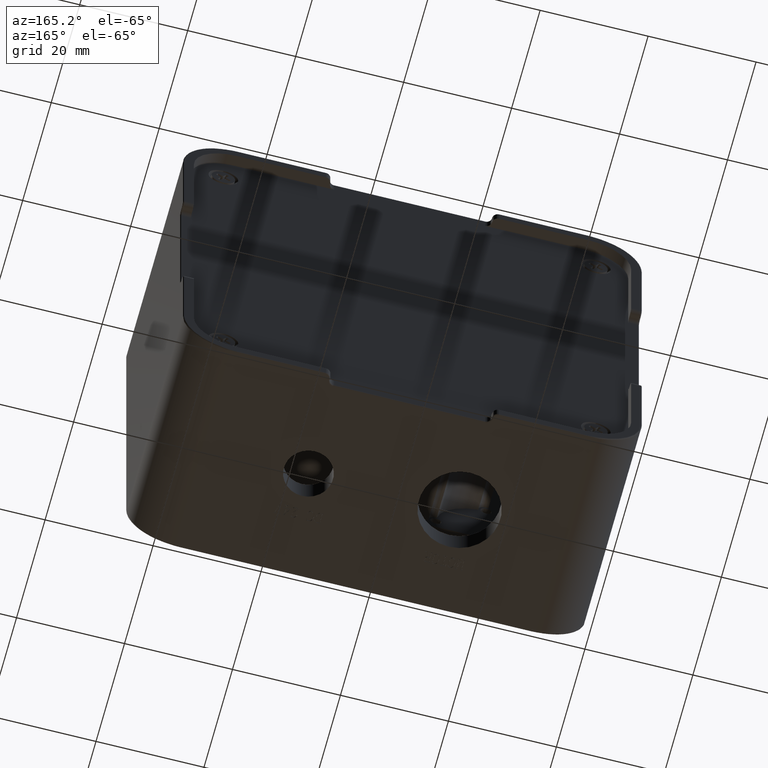
[diagram: clean part render]
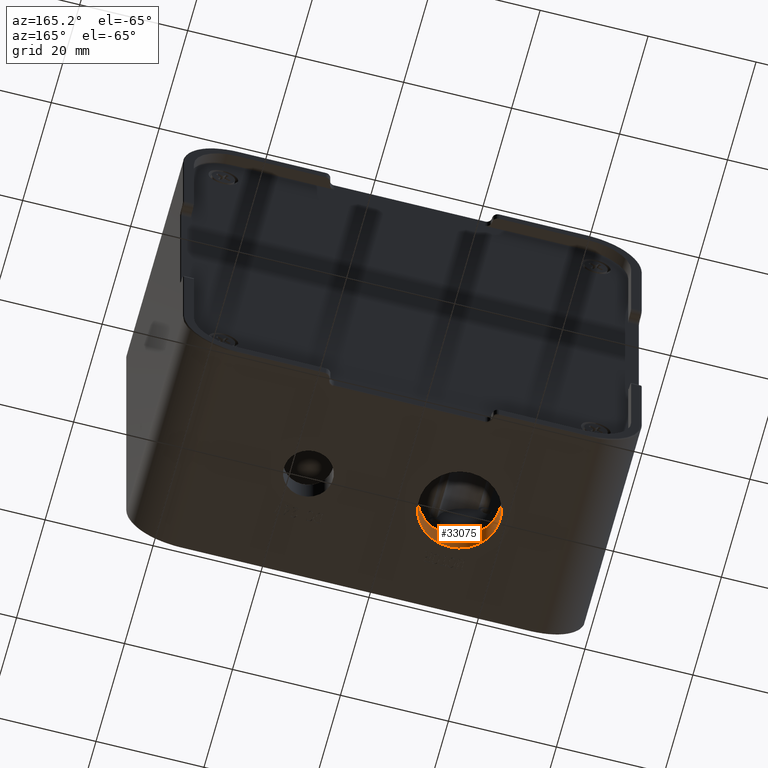
[diagram: same view with one face highlighted and labeled with its STEP entity id]
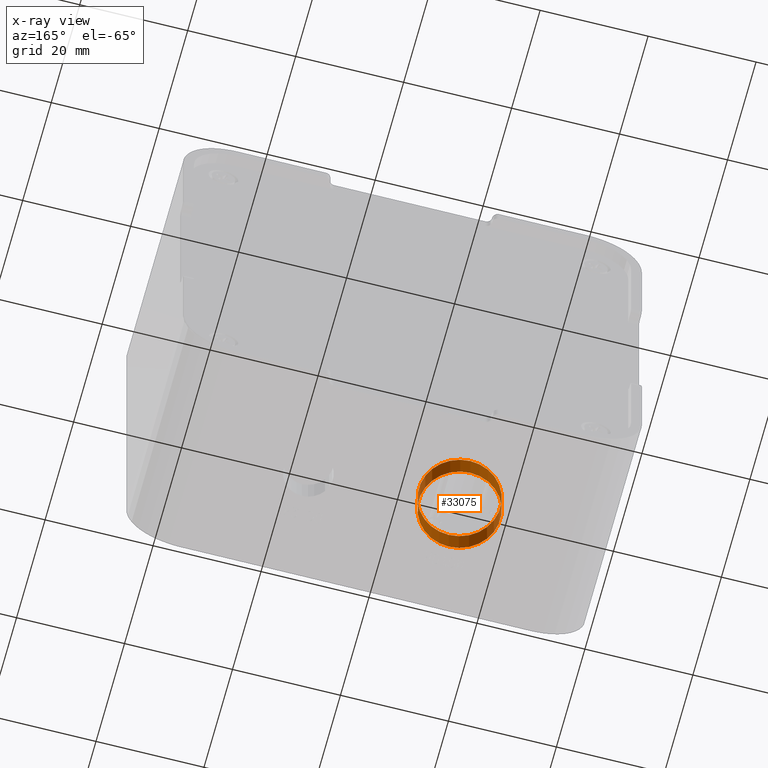
[diagram: x-ray of the same camera — body ghosted, the highlighted face saturated]
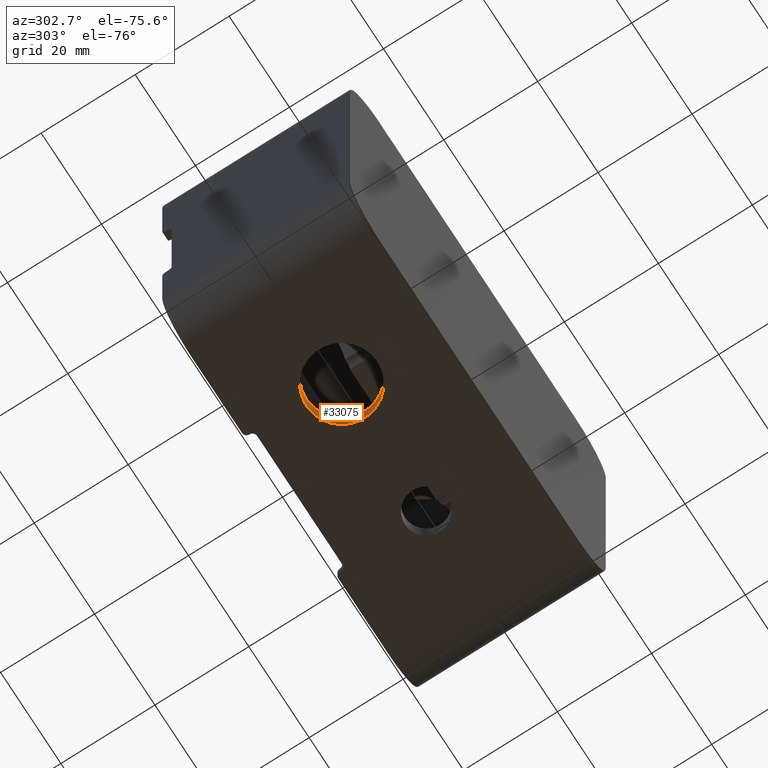
[diagram: same view with one face highlighted and labeled with its STEP entity id]
A machine part, auxiliary view. The second image highlights one B-rep face of the part: STEP entity #33075.
The next image is the same camera in x-ray: the body ghosted, the highlighted face saturated — about 0% of this face is hidden behind the body in this view.
A second angle (auxiliary view) of the same face is appended — the face is thin or edge-on in the first view.
In plain terms, the highlighted cylindrical surface (bore or boss wall) has radius 7.55 mm, axis along (0, 0, -1).
Its self-contained STEP definition (entity closure, byte-faithful):
#1032 = AXIS2_PLACEMENT_3D ( 'NONE', #12927, #9785, #40354 ) ;
#3565 = FACE_OUTER_BOUND ( 'NONE', #40980, .T. ) ;
#9785 = DIRECTION ( 'NONE',  ( 8.163404592832031500E-17, 1.224646799147353207E-16, -1.000000000000000000 ) ) ;
#10136 = CARTESIAN_POINT ( 'NONE',  ( 28.50000000000001066, 19.99999999999998934, 4.999999999999990230 ) ) ;
#10185 = CIRCLE ( 'NONE', #41047, 7.550000000000000711 ) ;
#12927 = CARTESIAN_POINT ( 'NONE',  ( 28.50000000000001066, 19.99999999999998934, -1.387778780781445676E-14 ) ) ;
#13430 = CARTESIAN_POINT ( 'NONE',  ( 28.50000000000000355, 19.99999999999997868, 85.00100000000001899 ) ) ;
#13934 = VERTEX_POINT ( 'NONE', #41352 ) ;
#15695 = CARTESIAN_POINT ( 'NONE',  ( 28.50000000000001066, 27.54999999999999005, -1.295317947445820607E-14 ) ) ;
#17237 = CYLINDRICAL_SURFACE ( 'NONE', #38333, 7.550000000000000711 ) ;
#20409 = FACE_OUTER_BOUND ( 'NONE', #27472, .T. ) ;
#20703 = ORIENTED_EDGE ( 'NONE', *, *, #44425, .T. ) ;
#21056 = ORIENTED_EDGE ( 'NONE', *, *, #41653, .F. ) ;
#22202 = VERTEX_POINT ( 'NONE', #15695 ) ;
#27472 = EDGE_LOOP ( 'NONE', ( #21056 ) ) ;
#29911 = DIRECTION ( 'NONE',  ( 8.163404592832031500E-17, 1.224646799147353207E-16, -1.000000000000000000 ) ) ;
#30056 = DIRECTION ( 'NONE',  ( 8.163404592832031500E-17, 1.224646799147353207E-16, -1.000000000000000000 ) ) ;
#33075 = ADVANCED_FACE ( 'NONE', ( #20409, #3565 ), #17237, .F. ) ;
#33949 = DIRECTION ( 'NONE',  ( 0.000000000000000000, 1.000000000000000000, 1.148823494024375448E-16 ) ) ;
#36161 = CIRCLE ( 'NONE', #1032, 7.550000000000000711 ) ;
#38333 = AXIS2_PLACEMENT_3D ( 'NONE', #13430, #30056, #41072 ) ;
#40354 = DIRECTION ( 'NONE',  ( 0.000000000000000000, 1.000000000000000000, 1.224646799147351975E-16 ) ) ;
#40980 = EDGE_LOOP ( 'NONE', ( #20703 ) ) ;
#41047 = AXIS2_PLACEMENT_3D ( 'NONE', #10136, #29911, #33949 ) ;
#41072 = DIRECTION ( 'NONE',  ( 0.000000000000000000, 1.000000000000000000, 0.000000000000000000 ) ) ;
#41352 = CARTESIAN_POINT ( 'NONE',  ( 28.50000000000001066, 27.54999999999999005, 4.999999999999991118 ) ) ;
#41653 = EDGE_CURVE ( 'NONE', #13934, #13934, #10185, .T. ) ;
#44425 = EDGE_CURVE ( 'NONE', #22202, #22202, #36161, .T. ) ;